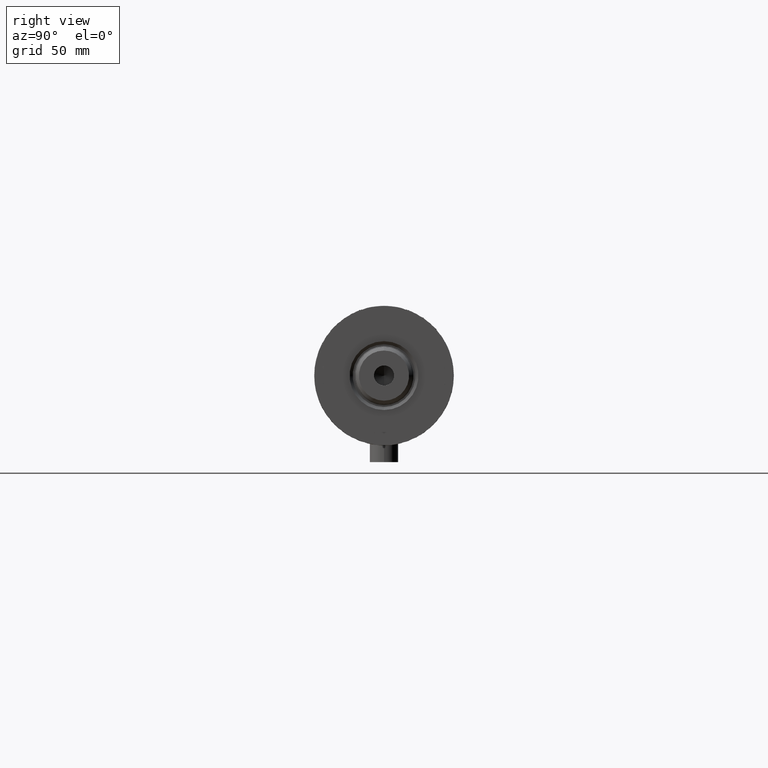
[diagram: clean part render]
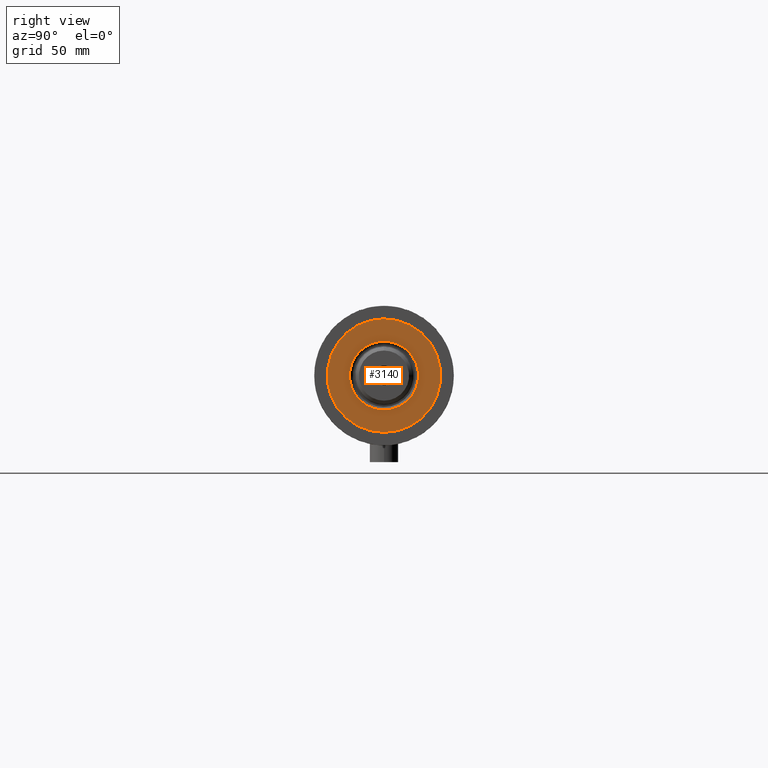
[diagram: same view with one face highlighted and labeled with its STEP entity id]
A machine part, right view. The second image highlights one B-rep face of the part: STEP entity #3140.
In plain terms, the highlighted planar face has unit normal (1, 0, -0).
Its self-contained STEP definition (entity closure, byte-faithful):
#166 = AXIS2_PLACEMENT_3D ( 'NONE', #1166, #4588, #878 ) ;
#329 = DIRECTION ( 'NONE',  ( 0.000000000000000000, 0.000000000000000000, 1.000000000000000000 ) ) ;
#348 = ORIENTED_EDGE ( 'NONE', *, *, #3609, .T. ) ;
#485 = ORIENTED_EDGE ( 'NONE', *, *, #3040, .T. ) ;
#765 = PLANE ( 'NONE',  #2430 ) ;
#878 = DIRECTION ( 'NONE',  ( 1.000000000000000000, 0.000000000000000000, 0.000000000000000000 ) ) ;
#1076 = FACE_OUTER_BOUND ( 'NONE', #3925, .T. ) ;
#1099 = DIRECTION ( 'NONE',  ( 0.000000000000000000, 0.000000000000000000, 1.000000000000000000 ) ) ;
#1166 = CARTESIAN_POINT ( 'NONE',  ( 0.000000000000000000, 0.000000000000000000, 41.00000000000000000 ) ) ;
#1192 = AXIS2_PLACEMENT_3D ( 'NONE', #1797, #329, #2589 ) ;
#1243 = DIRECTION ( 'NONE',  ( 1.000000000000000000, 0.000000000000000000, 0.000000000000000000 ) ) ;
#1253 = AXIS2_PLACEMENT_3D ( 'NONE', #4663, #3552, #3585 ) ;
#1324 = EDGE_LOOP ( 'NONE', ( #2979, #485 ) ) ;
#1366 = EDGE_CURVE ( 'NONE', #2614, #1419, #2942, .T. ) ;
#1419 = VERTEX_POINT ( 'NONE', #4375 ) ;
#1591 = CARTESIAN_POINT ( 'NONE',  ( 0.000000000000000000, 0.000000000000000000, 41.00000000000000000 ) ) ;
#1797 = CARTESIAN_POINT ( 'NONE',  ( 0.000000000000000000, 0.000000000000000000, 41.00000000000000000 ) ) ;
#1947 = CIRCLE ( 'NONE', #166, 14.54999999999997939 ) ;
#2182 = CARTESIAN_POINT ( 'NONE',  ( 14.54999999999997939, 0.000000000000000000, 41.00000000000000000 ) ) ;
#2233 = CARTESIAN_POINT ( 'NONE',  ( 0.000000000000000000, 0.000000000000000000, 41.00000000000000000 ) ) ;
#2402 = DIRECTION ( 'NONE',  ( -0.000000000000000000, -0.000000000000000000, -1.000000000000000000 ) ) ;
#2419 = CIRCLE ( 'NONE', #1192, 24.00000000000000355 ) ;
#2430 = AXIS2_PLACEMENT_3D ( 'NONE', #2233, #1099, #2948 ) ;
#2456 = ORIENTED_EDGE ( 'NONE', *, *, #1366, .T. ) ;
#2589 = DIRECTION ( 'NONE',  ( 1.000000000000000000, 0.000000000000000000, 0.000000000000000000 ) ) ;
#2614 = VERTEX_POINT ( 'NONE', #3466 ) ;
#2942 = CIRCLE ( 'NONE', #1253, 24.00000000000000355 ) ;
#2948 = DIRECTION ( 'NONE',  ( 1.000000000000000000, 0.000000000000000000, -0.000000000000000000 ) ) ;
#2979 = ORIENTED_EDGE ( 'NONE', *, *, #3340, .T. ) ;
#3040 = EDGE_CURVE ( 'NONE', #3873, #3590, #4364, .T. ) ;
#3140 = ADVANCED_FACE ( 'NONE', ( #3314, #1076 ), #765, .T. ) ;
#3314 = FACE_BOUND ( 'NONE', #1324, .T. ) ;
#3340 = EDGE_CURVE ( 'NONE', #3590, #3873, #1947, .T. ) ;
#3466 = CARTESIAN_POINT ( 'NONE',  ( -24.00000000000000355, 0.000000000000000000, 41.00000000000000000 ) ) ;
#3552 = DIRECTION ( 'NONE',  ( 0.000000000000000000, 0.000000000000000000, 1.000000000000000000 ) ) ;
#3585 = DIRECTION ( 'NONE',  ( 1.000000000000000000, 0.000000000000000000, 0.000000000000000000 ) ) ;
#3590 = VERTEX_POINT ( 'NONE', #2182 ) ;
#3609 = EDGE_CURVE ( 'NONE', #1419, #2614, #2419, .T. ) ;
#3840 = CARTESIAN_POINT ( 'NONE',  ( -14.54999999999997939, 1.781861092759396721E-15, 41.00000000000000000 ) ) ;
#3873 = VERTEX_POINT ( 'NONE', #3840 ) ;
#3891 = AXIS2_PLACEMENT_3D ( 'NONE', #1591, #2402, #1243 ) ;
#3925 = EDGE_LOOP ( 'NONE', ( #2456, #348 ) ) ;
#4364 = CIRCLE ( 'NONE', #3891, 14.54999999999997939 ) ;
#4375 = CARTESIAN_POINT ( 'NONE',  ( 24.00000000000000355, 2.939152317953648289E-15, 41.00000000000000000 ) ) ;
#4588 = DIRECTION ( 'NONE',  ( -0.000000000000000000, -0.000000000000000000, -1.000000000000000000 ) ) ;
#4663 = CARTESIAN_POINT ( 'NONE',  ( 0.000000000000000000, 0.000000000000000000, 41.00000000000000000 ) ) ;